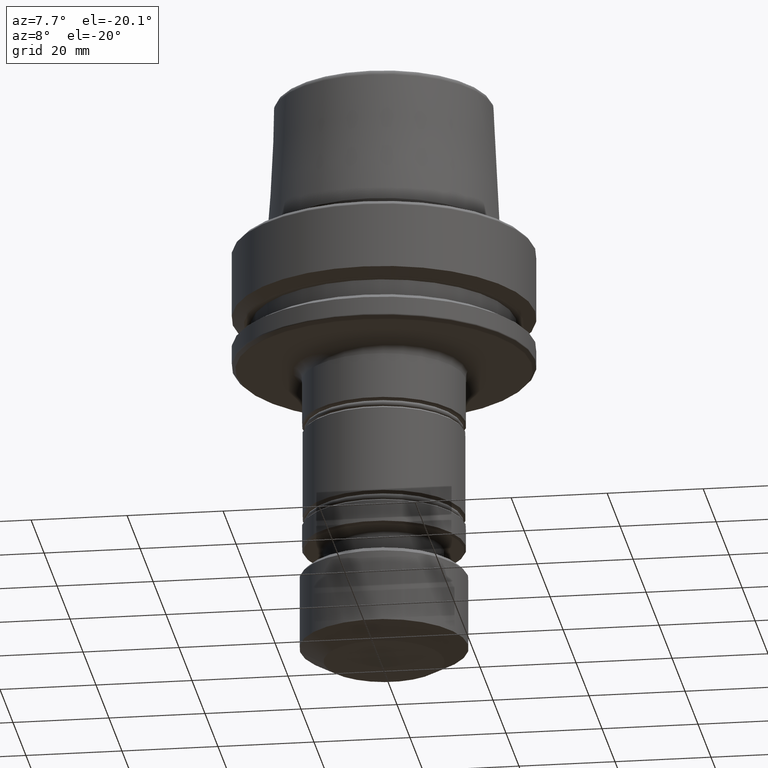
[diagram: clean part render]
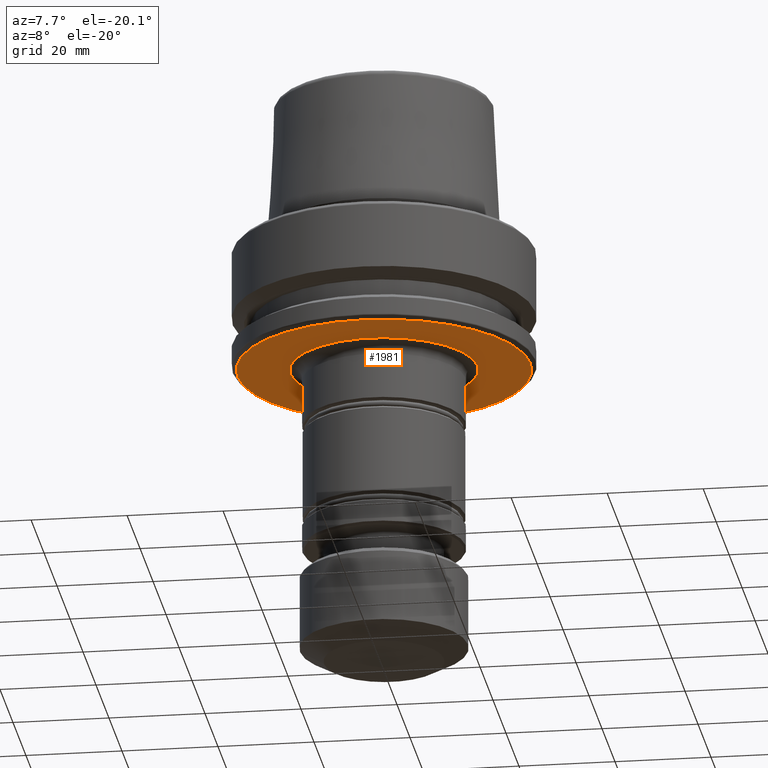
[diagram: same view with one face highlighted and labeled with its STEP entity id]
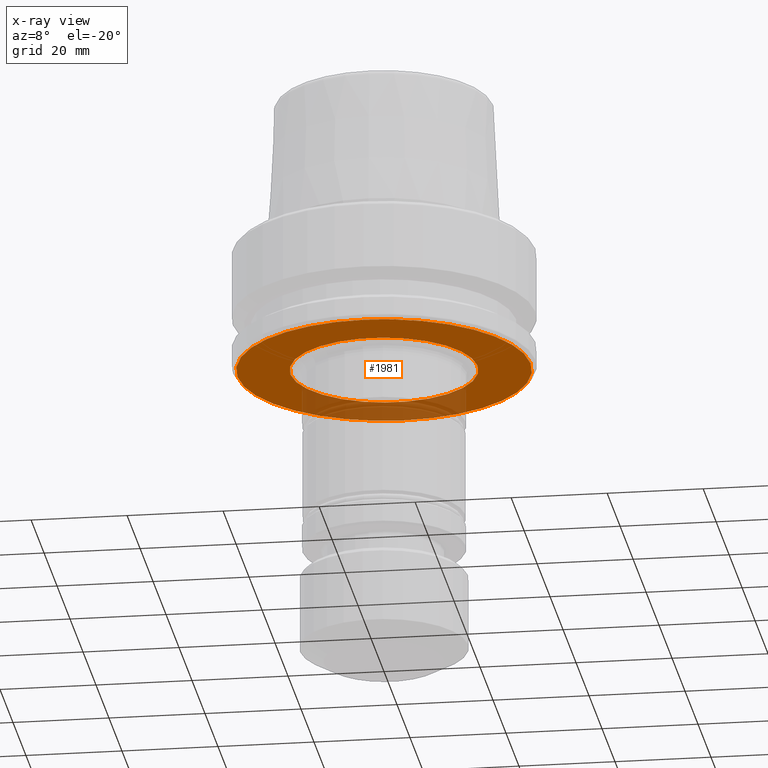
[diagram: x-ray of the same camera — body ghosted, the highlighted face saturated]
A machine part, auxiliary view. The second image highlights one B-rep face of the part: STEP entity #1981.
The next image is the same camera in x-ray: the body ghosted, the highlighted face saturated — about 24% of this face is hidden behind the body in this view.
In plain terms, the highlighted planar face has unit normal (0, -0, 1).
Its self-contained STEP definition (entity closure, byte-faithful):
#55 = CARTESIAN_POINT ( 'NONE',  ( 0.0000000000000000000, 30.53431457505076800, -26.00000000000000700 ) ) ;
#79 = CARTESIAN_POINT ( 'NONE',  ( -30.53431457505076800, 3.756694181974139400E-015, -26.00000000000001100 ) ) ;
#92 = AXIS2_PLACEMENT_3D ( 'NONE', #55, #842, #385 ) ;
#154 = ORIENTED_EDGE ( 'NONE', *, *, #1223, .F. ) ;
#156 = CARTESIAN_POINT ( 'NONE',  ( 0.0000000000000000000, 0.0000000000000000000, -26.00000000000001100 ) ) ;
#205 = CARTESIAN_POINT ( 'NONE',  ( 0.0000000000000000000, 0.0000000000000000000, -26.00000000000000700 ) ) ;
#361 = CIRCLE ( 'NONE', #1316, 30.53431457505076800 ) ;
#362 = AXIS2_PLACEMENT_3D ( 'NONE', #1178, #1424, #1235 ) ;
#385 = DIRECTION ( 'NONE',  ( 1.000000000000000000, 0.0000000000000000000, 0.0000000000000000000 ) ) ;
#593 = CARTESIAN_POINT ( 'NONE',  ( -19.50000000000229500, 2.388061258337619800E-015, -26.00000000000011400 ) ) ;
#613 = EDGE_LOOP ( 'NONE', ( #154, #1334 ) ) ;
#636 = DIRECTION ( 'NONE',  ( 1.000000000000000000, 0.0000000000000000000, 0.0000000000000000000 ) ) ;
#690 = VERTEX_POINT ( 'NONE', #1638 ) ;
#720 = CIRCLE ( 'NONE', #755, 19.50000000000229500 ) ;
#755 = AXIS2_PLACEMENT_3D ( 'NONE', #205, #1984, #1486 ) ;
#833 = EDGE_CURVE ( 'NONE', #1036, #2090, #720, .T. ) ;
#841 = EDGE_LOOP ( 'NONE', ( #1151, #961 ) ) ;
#842 = DIRECTION ( 'NONE',  ( 0.0000000000000000000, -0.0000000000000000000, 1.000000000000000000 ) ) ;
#852 = CIRCLE ( 'NONE', #1023, 30.53431457505076800 ) ;
#894 = CIRCLE ( 'NONE', #362, 19.50000000000229500 ) ;
#918 = FACE_BOUND ( 'NONE', #841, .T. ) ;
#961 = ORIENTED_EDGE ( 'NONE', *, *, #833, .F. ) ;
#1021 = EDGE_CURVE ( 'NONE', #1314, #690, #852, .T. ) ;
#1023 = AXIS2_PLACEMENT_3D ( 'NONE', #156, #2047, #2094 ) ;
#1036 = VERTEX_POINT ( 'NONE', #593 ) ;
#1132 = EDGE_CURVE ( 'NONE', #2090, #1036, #894, .T. ) ;
#1151 = ORIENTED_EDGE ( 'NONE', *, *, #1132, .F. ) ;
#1178 = CARTESIAN_POINT ( 'NONE',  ( 0.0000000000000000000, 0.0000000000000000000, -26.00000000000000700 ) ) ;
#1223 = EDGE_CURVE ( 'NONE', #690, #1314, #361, .T. ) ;
#1235 = DIRECTION ( 'NONE',  ( 1.000000000000000000, 0.0000000000000000000, 0.0000000000000000000 ) ) ;
#1314 = VERTEX_POINT ( 'NONE', #79 ) ;
#1316 = AXIS2_PLACEMENT_3D ( 'NONE', #1924, #1888, #636 ) ;
#1333 = PLANE ( 'NONE',  #92 ) ;
#1334 = ORIENTED_EDGE ( 'NONE', *, *, #1021, .F. ) ;
#1424 = DIRECTION ( 'NONE',  ( 0.0000000000000000000, 0.0000000000000000000, -1.000000000000000000 ) ) ;
#1476 = FACE_OUTER_BOUND ( 'NONE', #613, .T. ) ;
#1486 = DIRECTION ( 'NONE',  ( 1.000000000000000000, 0.0000000000000000000, 0.0000000000000000000 ) ) ;
#1638 = CARTESIAN_POINT ( 'NONE',  ( 30.53431457505076800, 0.0000000000000000000, -26.00000000000001100 ) ) ;
#1698 = CARTESIAN_POINT ( 'NONE',  ( 19.50000000000229500, 0.0000000000000000000, -26.00000000000011400 ) ) ;
#1888 = DIRECTION ( 'NONE',  ( -0.0000000000000000000, -0.0000000000000000000, 1.000000000000000000 ) ) ;
#1924 = CARTESIAN_POINT ( 'NONE',  ( 0.0000000000000000000, 0.0000000000000000000, -26.00000000000001100 ) ) ;
#1981 = ADVANCED_FACE ( 'NONE', ( #1476, #918 ), #1333, .F. ) ;
#1984 = DIRECTION ( 'NONE',  ( 0.0000000000000000000, 0.0000000000000000000, -1.000000000000000000 ) ) ;
#2047 = DIRECTION ( 'NONE',  ( -0.0000000000000000000, -0.0000000000000000000, 1.000000000000000000 ) ) ;
#2090 = VERTEX_POINT ( 'NONE', #1698 ) ;
#2094 = DIRECTION ( 'NONE',  ( 1.000000000000000000, 0.0000000000000000000, 0.0000000000000000000 ) ) ;